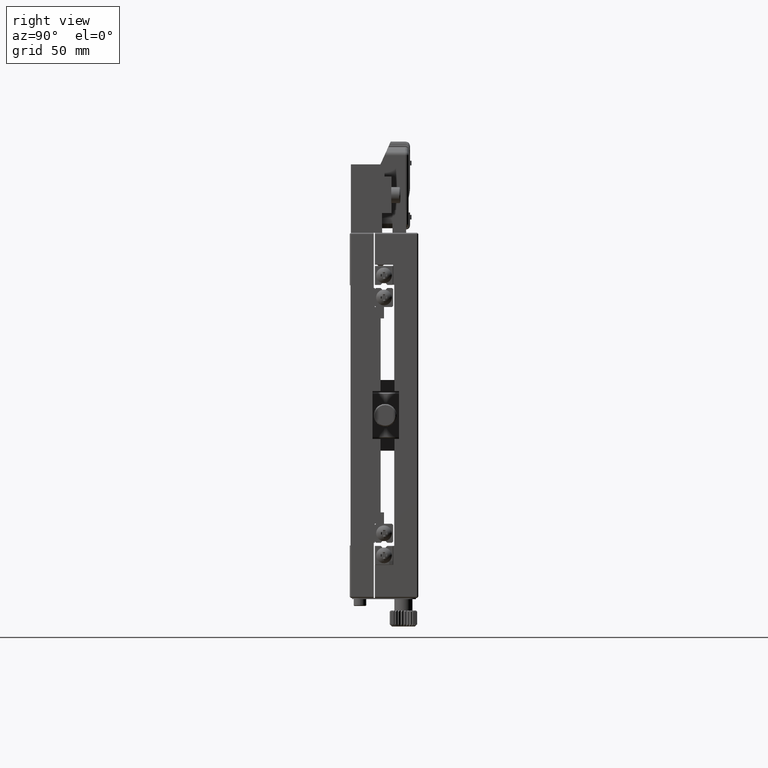
[diagram: clean part render]
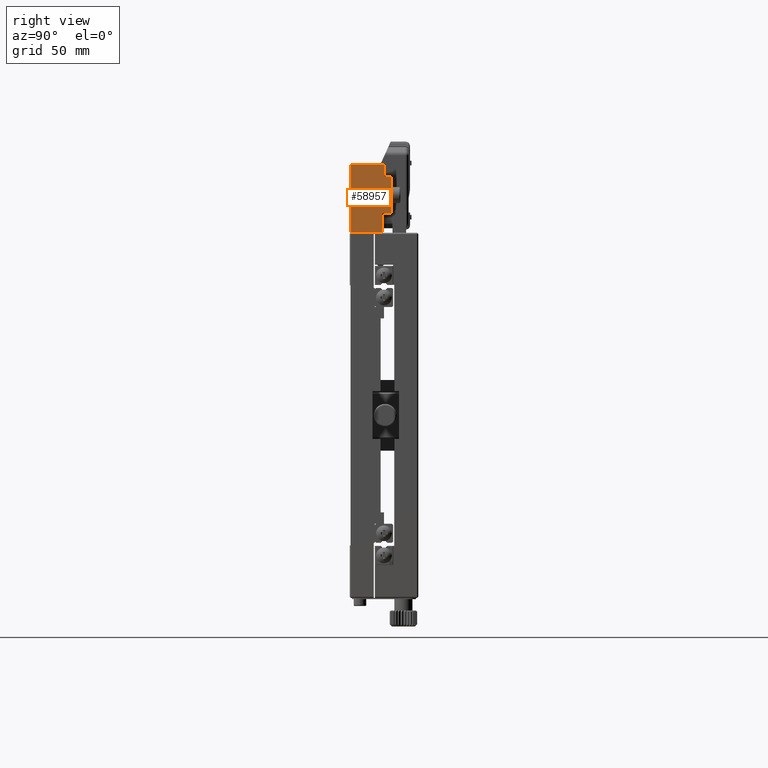
[diagram: same view with one face highlighted and labeled with its STEP entity id]
A machine part, right view. The second image highlights one B-rep face of the part: STEP entity #58957.
In plain terms, the highlighted planar face has unit normal (1, 0, 0).
Its self-contained STEP definition (entity closure, byte-faithful):
#223 = EDGE_CURVE ( 'NONE', #9163, #51585, #10895, .T. ) ;
#1744 = EDGE_CURVE ( 'NONE', #56070, #10539, #27890, .T. ) ;
#2163 = VECTOR ( 'NONE', #38666, 1000.000000000000000 ) ;
#2208 = CARTESIAN_POINT ( 'NONE',  ( -0.5000000000000002220, 18.19999999999999929, 90.20000000000000284 ) ) ;
#2395 = DIRECTION ( 'NONE',  ( 0.000000000000000000, -1.000000000000000000, -0.000000000000000000 ) ) ;
#3186 = ORIENTED_EDGE ( 'NONE', *, *, #18382, .F. ) ;
#4017 = ORIENTED_EDGE ( 'NONE', *, *, #52529, .F. ) ;
#4620 = VERTEX_POINT ( 'NONE', #2208 ) ;
#4756 = DIRECTION ( 'NONE',  ( 0.000000000000000000, -1.000000000000000000, -0.000000000000000000 ) ) ;
#5769 = VECTOR ( 'NONE', #13654, 1000.000000000000000 ) ;
#6775 = DIRECTION ( 'NONE',  ( 0.000000000000000000, 1.000000000000000000, -0.000000000000000000 ) ) ;
#9074 = DIRECTION ( 'NONE',  ( -0.000000000000000000, -0.000000000000000000, 1.000000000000000000 ) ) ;
#9163 = VERTEX_POINT ( 'NONE', #48158 ) ;
#9629 = DIRECTION ( 'NONE',  ( -0.000000000000000000, 1.000000000000000000, 0.000000000000000000 ) ) ;
#9834 = DIRECTION ( 'NONE',  ( -0.000000000000000000, -0.000000000000000000, 1.000000000000000000 ) ) ;
#10539 = VERTEX_POINT ( 'NONE', #12409 ) ;
#10895 = LINE ( 'NONE', #59796, #23951 ) ;
#10915 = CARTESIAN_POINT ( 'NONE',  ( -0.5000000000000003331, 18.19999999999999929, 88.50000000000000000 ) ) ;
#11456 = CARTESIAN_POINT ( 'NONE',  ( -0.5000000000000003331, 15.19999999999999929, 110.0000000000000000 ) ) ;
#11770 = ORIENTED_EDGE ( 'NONE', *, *, #49237, .F. ) ;
#12073 = LINE ( 'NONE', #31202, #32286 ) ;
#12387 = CARTESIAN_POINT ( 'NONE',  ( -0.5000000000000000000, 0.000000000000000000, 104.5000000000000000 ) ) ;
#12409 = CARTESIAN_POINT ( 'NONE',  ( -0.5000000000000002220, 0.5000000000000001110, 110.0000000000000000 ) ) ;
#13654 = DIRECTION ( 'NONE',  ( -0.000000000000000000, -1.000000000000000000, -0.000000000000000000 ) ) ;
#14116 = VECTOR ( 'NONE', #9074, 1000.000000000000000 ) ;
#14536 = LINE ( 'NONE', #47463, #2163 ) ;
#15599 = CARTESIAN_POINT ( 'NONE',  ( -0.5000000000000004441, 18.19999999999999929, 102.7999999999999972 ) ) ;
#15726 = EDGE_CURVE ( 'NONE', #54413, #45967, #32586, .T. ) ;
#16080 = EDGE_CURVE ( 'NONE', #4620, #21969, #14536, .T. ) ;
#16361 = ORIENTED_EDGE ( 'NONE', *, *, #32662, .T. ) ;
#16461 = VECTOR ( 'NONE', #2395, 1000.000000000000000 ) ;
#16563 = FACE_OUTER_BOUND ( 'NONE', #52960, .T. ) ;
#18382 = EDGE_CURVE ( 'NONE', #54413, #24665, #61340, .T. ) ;
#18682 = VECTOR ( 'NONE', #50336, 1000.000000000000000 ) ;
#19557 = VECTOR ( 'NONE', #9629, 1000.000000000000000 ) ;
#21162 = ORIENTED_EDGE ( 'NONE', *, *, #223, .T. ) ;
#21212 = CARTESIAN_POINT ( 'NONE',  ( -0.5000000000000003331, 18.19999999999999929, 104.5000000000000000 ) ) ;
#21782 = ORIENTED_EDGE ( 'NONE', *, *, #36256, .F. ) ;
#21969 = VERTEX_POINT ( 'NONE', #10915 ) ;
#22253 = CARTESIAN_POINT ( 'NONE',  ( -0.5000000000000003331, 18.14999999999999858, 90.20000000000000284 ) ) ;
#23951 = VECTOR ( 'NONE', #45084, 1000.000000000000000 ) ;
#24665 = VERTEX_POINT ( 'NONE', #36790 ) ;
#27067 = VERTEX_POINT ( 'NONE', #34104 ) ;
#27137 = LINE ( 'NONE', #12387, #16461 ) ;
#27890 = LINE ( 'NONE', #47005, #18682 ) ;
#28749 = LINE ( 'NONE', #61689, #19557 ) ;
#28921 = VECTOR ( 'NONE', #4756, 1000.000000000000000 ) ;
#29328 = CARTESIAN_POINT ( 'NONE',  ( -0.5000000000000002220, 18.19999999999999929, 102.7999999999999972 ) ) ;
#30030 = DIRECTION ( 'NONE',  ( -0.000000000000000000, 0.000000000000000000, -1.000000000000000000 ) ) ;
#31202 = CARTESIAN_POINT ( 'NONE',  ( -0.5000000000000004441, 0.000000000000000000, 80.00000000000000000 ) ) ;
#31248 = DIRECTION ( 'NONE',  ( -0.000000000000000000, 1.000000000000000000, 0.000000000000000000 ) ) ;
#32286 = VECTOR ( 'NONE', #6775, 1000.000000000000000 ) ;
#32586 = LINE ( 'NONE', #41995, #14116 ) ;
#32662 = EDGE_CURVE ( 'NONE', #56070, #24665, #12073, .T. ) ;
#33225 = ORIENTED_EDGE ( 'NONE', *, *, #33246, .T. ) ;
#33246 = EDGE_CURVE ( 'NONE', #45967, #21969, #58844, .T. ) ;
#34104 = CARTESIAN_POINT ( 'NONE',  ( -0.5000000000000003331, 18.14999999999999858, 102.7999999999999972 ) ) ;
#34762 = ORIENTED_EDGE ( 'NONE', *, *, #16080, .F. ) ;
#35014 = CARTESIAN_POINT ( 'NONE',  ( -0.5000000000000000000, 0.000000000000000000, 88.50000000000000000 ) ) ;
#35317 = ORIENTED_EDGE ( 'NONE', *, *, #1744, .F. ) ;
#35662 = DIRECTION ( 'NONE',  ( 0.000000000000000000, 0.000000000000000000, -1.000000000000000000 ) ) ;
#36229 = CARTESIAN_POINT ( 'NONE',  ( -0.5000000000000004441, 18.14999999999999858, 102.7999999999999972 ) ) ;
#36256 = EDGE_CURVE ( 'NONE', #60791, #46014, #48530, .T. ) ;
#36790 = CARTESIAN_POINT ( 'NONE',  ( -0.4999999999999950040, 10.50000000000000178, 79.99999999999998579 ) ) ;
#38490 = EDGE_CURVE ( 'NONE', #46586, #27067, #54031, .T. ) ;
#38666 = DIRECTION ( 'NONE',  ( -0.000000000000000000, 0.000000000000000000, -1.000000000000000000 ) ) ;
#39449 = VECTOR ( 'NONE', #46278, 1000.000000000000000 ) ;
#40624 = VECTOR ( 'NONE', #9834, 1000.000000000000000 ) ;
#40707 = CARTESIAN_POINT ( 'NONE',  ( -0.5000000000000004441, 0.5000000000000000000, 80.00000000000000000 ) ) ;
#41260 = LINE ( 'NONE', #36229, #39449 ) ;
#41995 = CARTESIAN_POINT ( 'NONE',  ( -0.5000000000000000000, 14.19999999999999929, 0.000000000000000000 ) ) ;
#42413 = ORIENTED_EDGE ( 'NONE', *, *, #51514, .T. ) ;
#42519 = CARTESIAN_POINT ( 'NONE',  ( -0.5000000000000003331, 14.19999999999999929, 88.50000000000000000 ) ) ;
#43310 = CARTESIAN_POINT ( 'NONE',  ( -0.5000000000000000000, 0.000000000000000000, 110.0000000000000000 ) ) ;
#44313 = CARTESIAN_POINT ( 'NONE',  ( -0.5000000000000000000, 18.14999999999999858, 0.000000000000000000 ) ) ;
#45084 = DIRECTION ( 'NONE',  ( -0.000000000000000000, -0.000000000000000000, 1.000000000000000000 ) ) ;
#45967 = VERTEX_POINT ( 'NONE', #42519 ) ;
#46014 = VERTEX_POINT ( 'NONE', #29328 ) ;
#46278 = DIRECTION ( 'NONE',  ( -0.000000000000000000, -1.000000000000000000, -0.000000000000000000 ) ) ;
#46586 = VERTEX_POINT ( 'NONE', #22253 ) ;
#47005 = CARTESIAN_POINT ( 'NONE',  ( -0.5000000000000004441, 0.5000000000000000000, 110.0000000000000000 ) ) ;
#47463 = CARTESIAN_POINT ( 'NONE',  ( -0.5000000000000004441, 18.19999999999999929, 88.50000000000000000 ) ) ;
#48158 = CARTESIAN_POINT ( 'NONE',  ( -0.5000000000000003331, 15.19999999999999929, 104.5000000000000000 ) ) ;
#48530 = LINE ( 'NONE', #15599, #54651 ) ;
#49237 = EDGE_CURVE ( 'NONE', #46014, #27067, #41260, .T. ) ;
#49486 = PLANE ( 'NONE',  #49690 ) ;
#49690 = AXIS2_PLACEMENT_3D ( 'NONE', #59823, #54209, #35662 ) ;
#50336 = DIRECTION ( 'NONE',  ( -0.000000000000000000, 0.000000000000000000, 1.000000000000000000 ) ) ;
#50368 = VECTOR ( 'NONE', #31248, 1000.000000000000000 ) ;
#50428 = ORIENTED_EDGE ( 'NONE', *, *, #38490, .T. ) ;
#51514 = EDGE_CURVE ( 'NONE', #60791, #9163, #27137, .T. ) ;
#51585 = VERTEX_POINT ( 'NONE', #11456 ) ;
#52404 = LINE ( 'NONE', #43310, #28921 ) ;
#52529 = EDGE_CURVE ( 'NONE', #46586, #4620, #28749, .T. ) ;
#52600 = ORIENTED_EDGE ( 'NONE', *, *, #57522, .T. ) ;
#52722 = ORIENTED_EDGE ( 'NONE', *, *, #15726, .T. ) ;
#52960 = EDGE_LOOP ( 'NONE', ( #21782, #42413, #21162, #52600, #35317, #16361, #3186, #52722, #33225, #34762, #4017, #50428, #11770 ) ) ;
#54031 = LINE ( 'NONE', #44313, #40624 ) ;
#54209 = DIRECTION ( 'NONE',  ( 1.000000000000000000, 0.000000000000000000, 0.000000000000000000 ) ) ;
#54413 = VERTEX_POINT ( 'NONE', #55196 ) ;
#54651 = VECTOR ( 'NONE', #30030, 1000.000000000000000 ) ;
#55196 = CARTESIAN_POINT ( 'NONE',  ( -0.5000000000000003331, 14.19999999999999929, 80.00000000000000000 ) ) ;
#56070 = VERTEX_POINT ( 'NONE', #57504 ) ;
#57504 = CARTESIAN_POINT ( 'NONE',  ( -0.4999999999999950040, 0.5000000000000000000, 80.00000000000000000 ) ) ;
#57522 = EDGE_CURVE ( 'NONE', #51585, #10539, #52404, .T. ) ;
#58844 = LINE ( 'NONE', #35014, #50368 ) ;
#58957 = ADVANCED_FACE ( 'NONE', ( #16563 ), #49486, .T. ) ;
#59796 = CARTESIAN_POINT ( 'NONE',  ( -0.5000000000000000000, 15.19999999999999929, 0.000000000000000000 ) ) ;
#59823 = CARTESIAN_POINT ( 'NONE',  ( -0.5000000000000000000, 0.000000000000000000, 0.000000000000000000 ) ) ;
#60791 = VERTEX_POINT ( 'NONE', #21212 ) ;
#61340 = LINE ( 'NONE', #40707, #5769 ) ;
#61689 = CARTESIAN_POINT ( 'NONE',  ( -0.5000000000000004441, 18.19999999999999929, 90.20000000000000284 ) ) ;